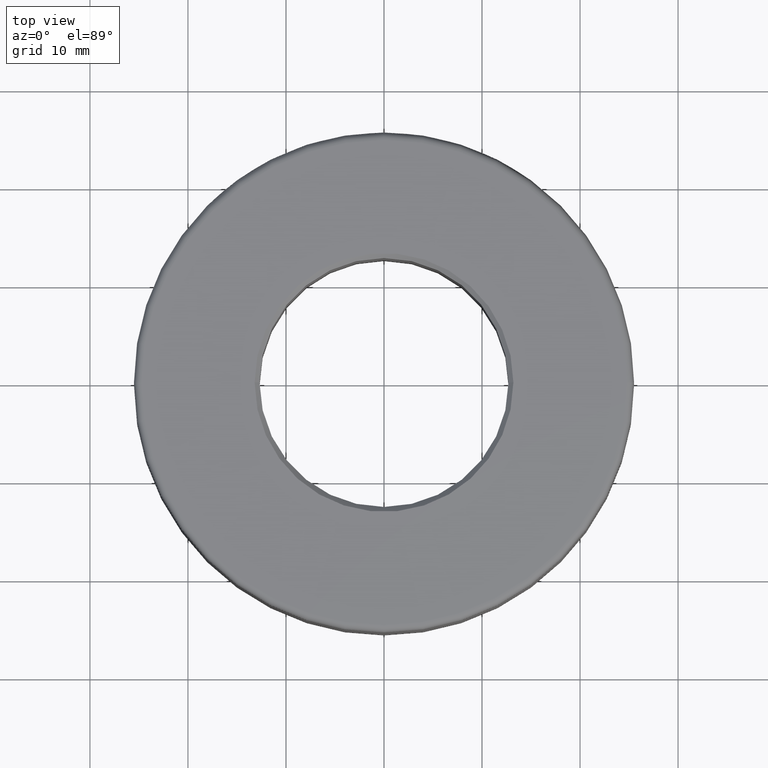
[diagram: clean part render]
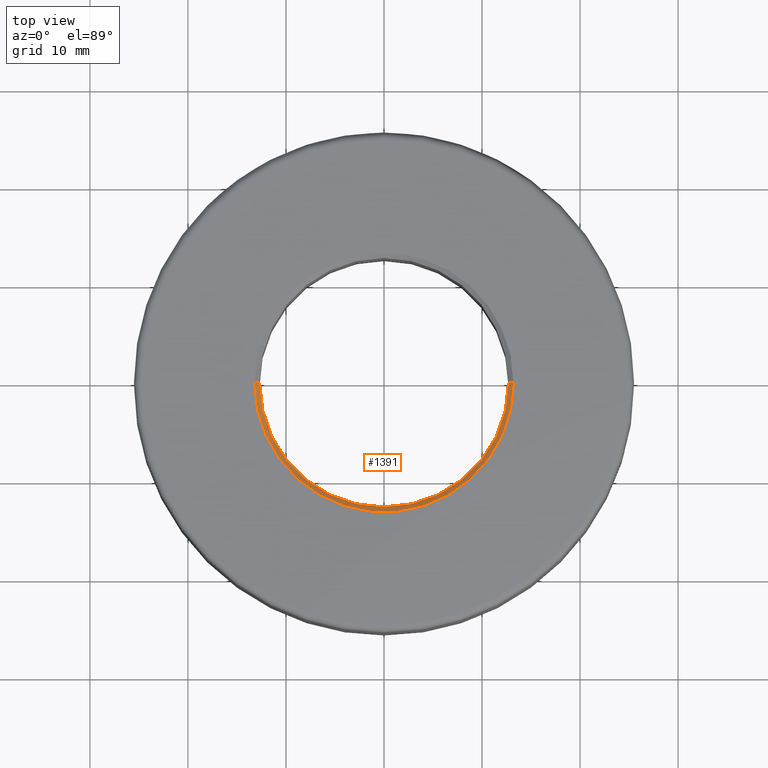
[diagram: same view with one face highlighted and labeled with its STEP entity id]
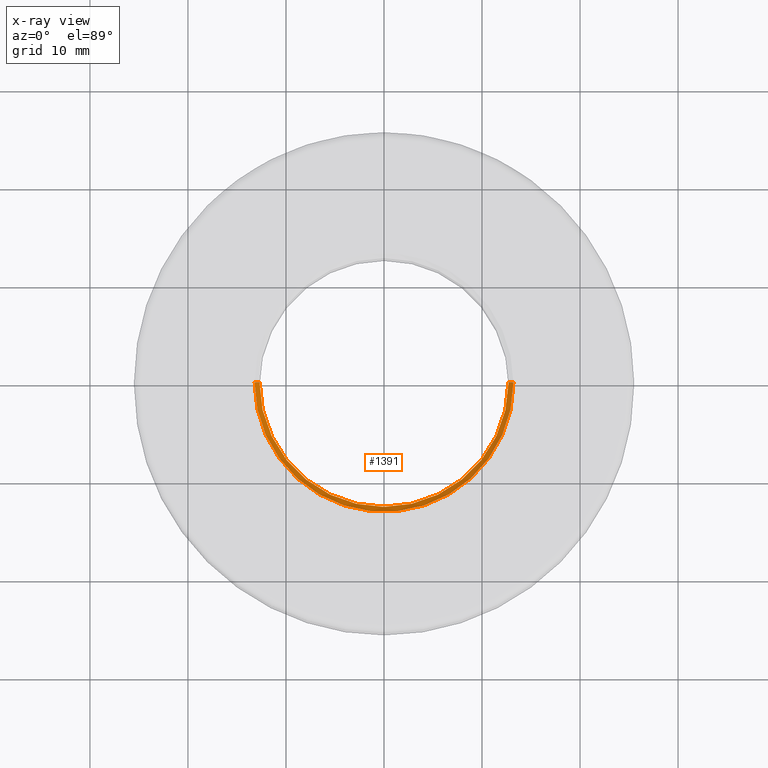
[diagram: x-ray of the same camera — body ghosted, the highlighted face saturated]
A machine part, top view. The second image highlights one B-rep face of the part: STEP entity #1391.
The next image is the same camera in x-ray: the body ghosted, the highlighted face saturated — about 0% of this face is hidden behind the body in this view.
In plain terms, the highlighted conical surface has half-angle 45 deg.
Its self-contained STEP definition (entity closure, byte-faithful):
#52 = VERTEX_POINT ( 'NONE', #161 ) ;
#126 = CARTESIAN_POINT ( 'NONE',  ( -12.69999999999999900, 1.555301434917138400E-015, 8.999999999999985800 ) ) ;
#161 = CARTESIAN_POINT ( 'NONE',  ( 13.20000000000001200, 0.0000000000000000000, 9.500000000000000000 ) ) ;
#197 = CARTESIAN_POINT ( 'NONE',  ( -13.20000000000001200, 1.616533774874507800E-015, 9.500000000000000000 ) ) ;
#420 = VECTOR ( 'NONE', #755, 1000.000000000000000 ) ;
#542 = DIRECTION ( 'NONE',  ( 1.000000000000000000, 0.0000000000000000000, 0.0000000000000000000 ) ) ;
#589 = ORIENTED_EDGE ( 'NONE', *, *, #1192, .F. ) ;
#613 = DIRECTION ( 'NONE',  ( 0.0000000000000000000, 0.0000000000000000000, 1.000000000000000000 ) ) ;
#615 = EDGE_CURVE ( 'NONE', #1991, #1406, #1815, .T. ) ;
#650 = DIRECTION ( 'NONE',  ( 1.000000000000000000, 0.0000000000000000000, 0.0000000000000000000 ) ) ;
#680 = CONICAL_SURFACE ( 'NONE', #2320, 12.69999999999999900, 0.7853981633974466100 ) ;
#755 = DIRECTION ( 'NONE',  ( 0.7071067811865463500, 0.0000000000000000000, 0.7071067811865487900 ) ) ;
#790 = EDGE_LOOP ( 'NONE', ( #885, #1903, #589, #1009 ) ) ;
#799 = FACE_OUTER_BOUND ( 'NONE', #790, .T. ) ;
#853 = CARTESIAN_POINT ( 'NONE',  ( 12.69999999999999900, 0.0000000000000000000, 8.999999999999985800 ) ) ;
#885 = ORIENTED_EDGE ( 'NONE', *, *, #1118, .F. ) ;
#1009 = ORIENTED_EDGE ( 'NONE', *, *, #2755, .F. ) ;
#1050 = CARTESIAN_POINT ( 'NONE',  ( -12.69999999999999900, 1.555301434917138400E-015, 8.999999999999985800 ) ) ;
#1118 = EDGE_CURVE ( 'NONE', #1991, #1438, #2199, .T. ) ;
#1192 = EDGE_CURVE ( 'NONE', #52, #1406, #2555, .T. ) ;
#1386 = LINE ( 'NONE', #2697, #420 ) ;
#1391 = ADVANCED_FACE ( 'NONE', ( #799 ), #680, .F. ) ;
#1406 = VERTEX_POINT ( 'NONE', #197 ) ;
#1438 = VERTEX_POINT ( 'NONE', #853 ) ;
#1674 = CARTESIAN_POINT ( 'NONE',  ( 0.0000000000000000000, 0.0000000000000000000, 8.999999999999985800 ) ) ;
#1815 = LINE ( 'NONE', #126, #2254 ) ;
#1903 = ORIENTED_EDGE ( 'NONE', *, *, #615, .T. ) ;
#1991 = VERTEX_POINT ( 'NONE', #1050 ) ;
#2126 = DIRECTION ( 'NONE',  ( 0.0000000000000000000, 0.0000000000000000000, 1.000000000000000000 ) ) ;
#2199 = CIRCLE ( 'NONE', #2402, 12.69999999999999900 ) ;
#2242 = DIRECTION ( 'NONE',  ( -0.0000000000000000000, -0.0000000000000000000, -1.000000000000000000 ) ) ;
#2253 = CARTESIAN_POINT ( 'NONE',  ( 0.0000000000000000000, 0.0000000000000000000, 9.500000000000000000 ) ) ;
#2254 = VECTOR ( 'NONE', #2479, 1000.000000000000000 ) ;
#2316 = CARTESIAN_POINT ( 'NONE',  ( 0.0000000000000000000, 0.0000000000000000000, 8.999999999999985800 ) ) ;
#2320 = AXIS2_PLACEMENT_3D ( 'NONE', #1674, #2126, #650 ) ;
#2402 = AXIS2_PLACEMENT_3D ( 'NONE', #2316, #613, #2539 ) ;
#2450 = AXIS2_PLACEMENT_3D ( 'NONE', #2253, #2242, #542 ) ;
#2479 = DIRECTION ( 'NONE',  ( -0.7071067811865463500, 8.659560562354919300E-017, 0.7071067811865487900 ) ) ;
#2539 = DIRECTION ( 'NONE',  ( 1.000000000000000000, 0.0000000000000000000, 0.0000000000000000000 ) ) ;
#2555 = CIRCLE ( 'NONE', #2450, 13.20000000000001200 ) ;
#2697 = CARTESIAN_POINT ( 'NONE',  ( 12.69999999999999900, 0.0000000000000000000, 8.999999999999985800 ) ) ;
#2755 = EDGE_CURVE ( 'NONE', #1438, #52, #1386, .T. ) ;